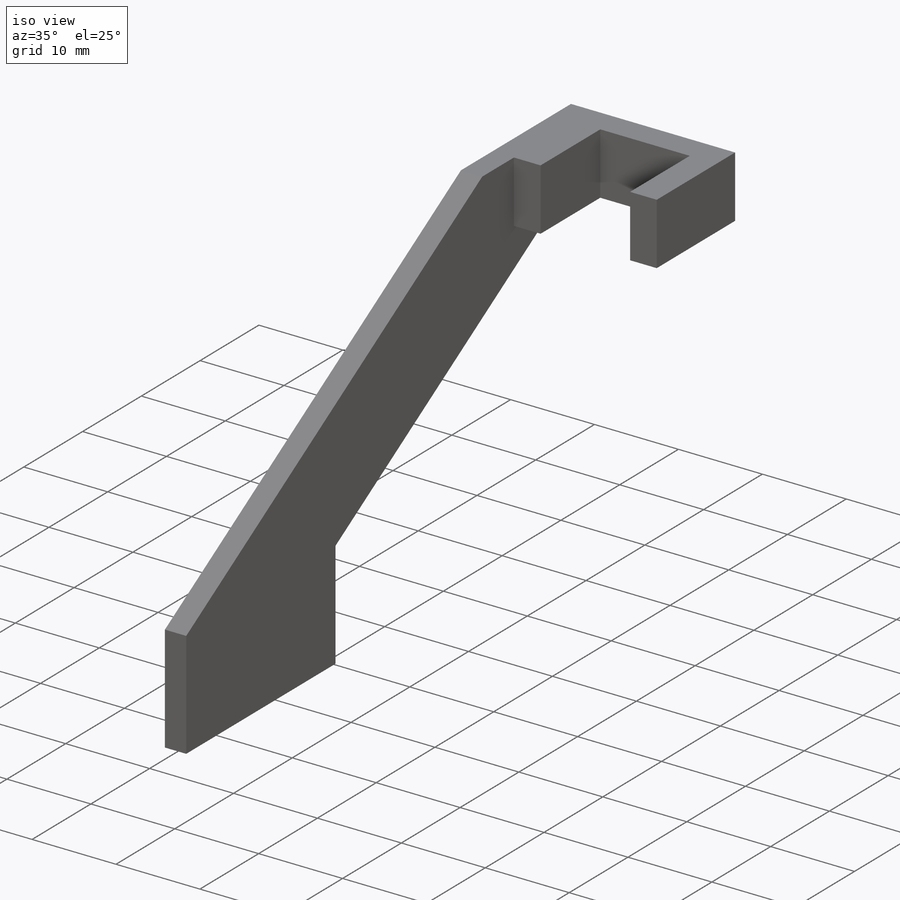
[diagram: iso view]
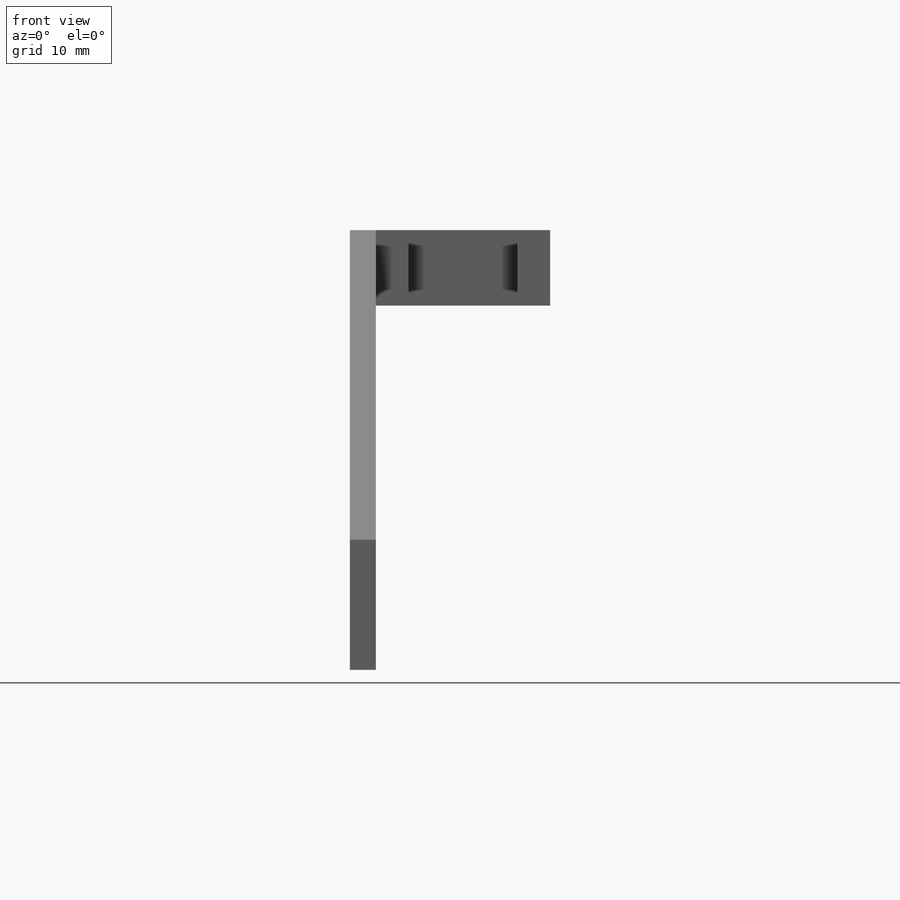
[diagram: front view]
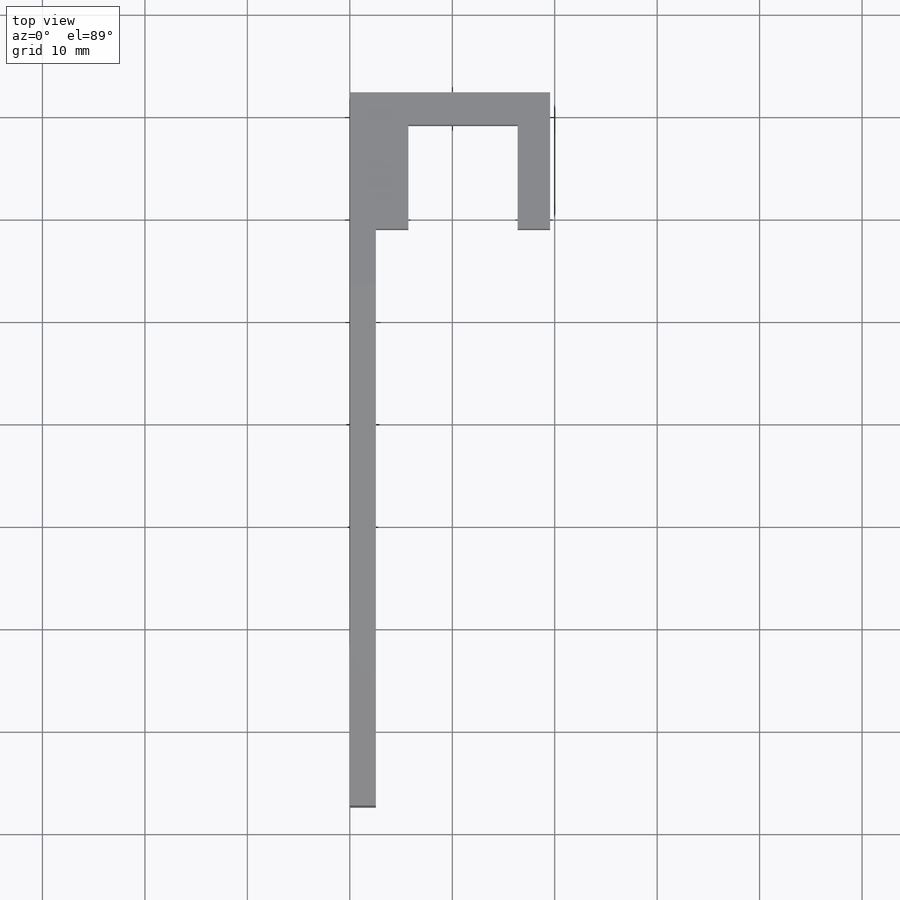
[diagram: top view]
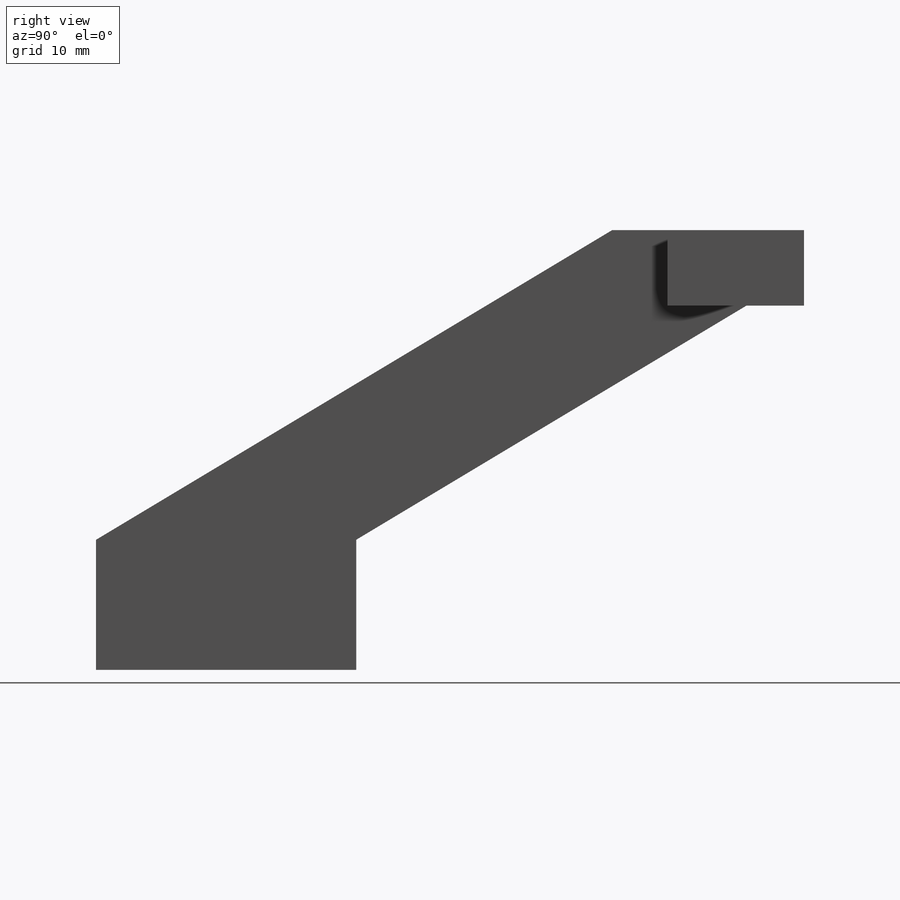
[diagram: right view]
SOLIDWORKS PART (.sldprt)
format: sldprt  version: not decoded by parser v0  size: 171,008 bytes
history: native  units: mm
features: sketch x4, extrude x4, material x1 (+12 scaffold rows collapsed)
feature tree (21):
  scaffold x12  (default folders/planes/origin — collapsed)
  material  "Material <not specified>"
  sketch  "Sketch1"  dims[c1.D1=12.7mm c1.D2=12.7mm c1.D3=6.35mm c1.D4=25.4mm c1.D5=22.86mm c1.D6=38.1mm c1.D7=39.751mm c2.D3=30.226mm]
  extrude  "Boss-Extrude1"  Depth=2.54mm
  sketch  "Sketch2"  dims[D1=10.16mm D2=3.175mm]
  extrude  "Boss-Extrude2"  Depth=3.175mm
  sketch  "Sketch3"  dims[D1=3.175mm]
  extrude  "Boss-Extrude4"  Depth=10.668mm
  sketch  "Sketch4"  dims[D1=10.16mm]
  extrude  "Boss-Extrude5"  Depth=3.175mm
decode coverage: 8 of 8 modeling features carry decoded parameters
note: suppression state not decoded; provenance and decode notes live in map.json
